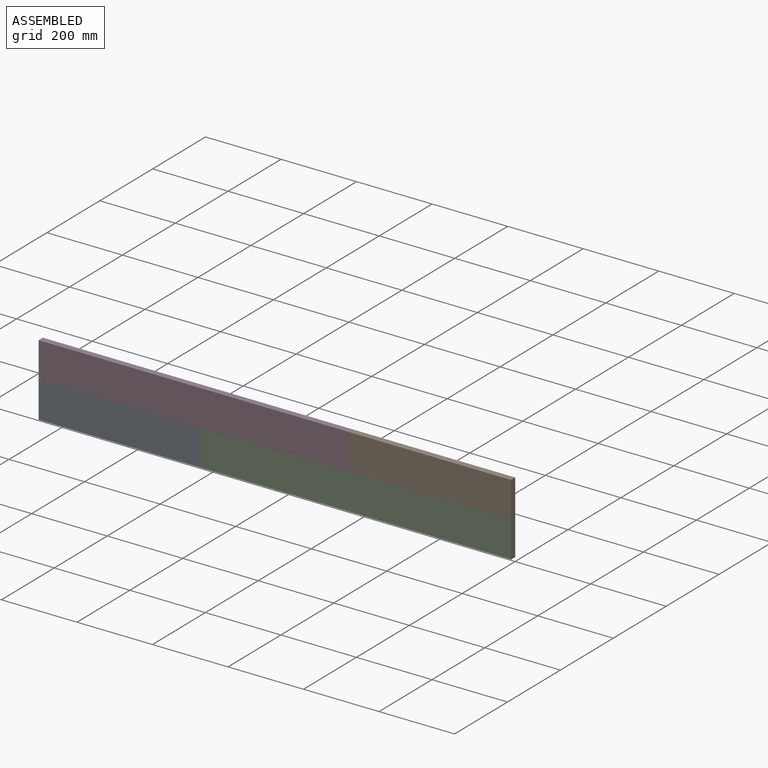
[diagram: assembled view]
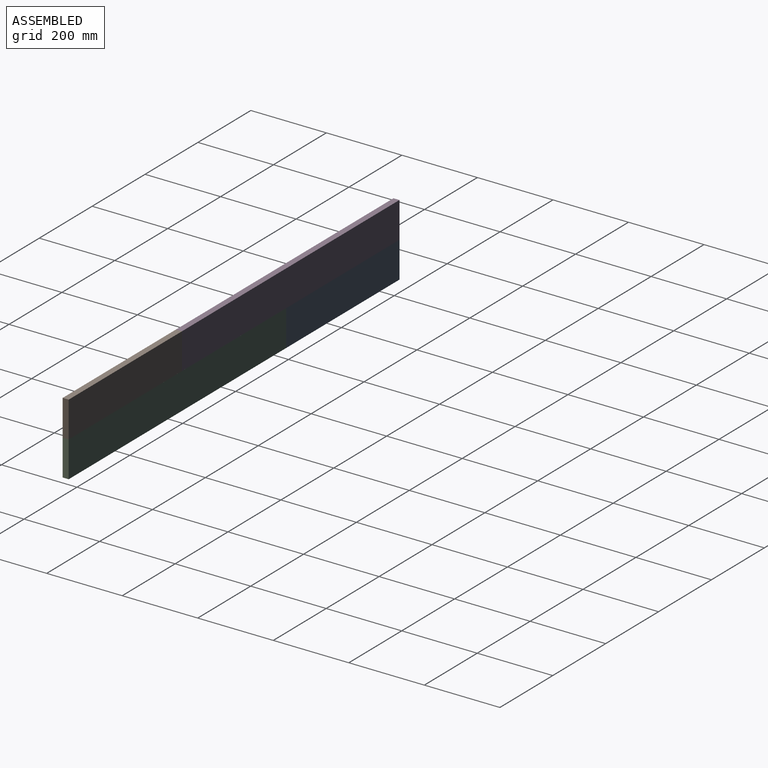
[diagram: assembled view, second angle]
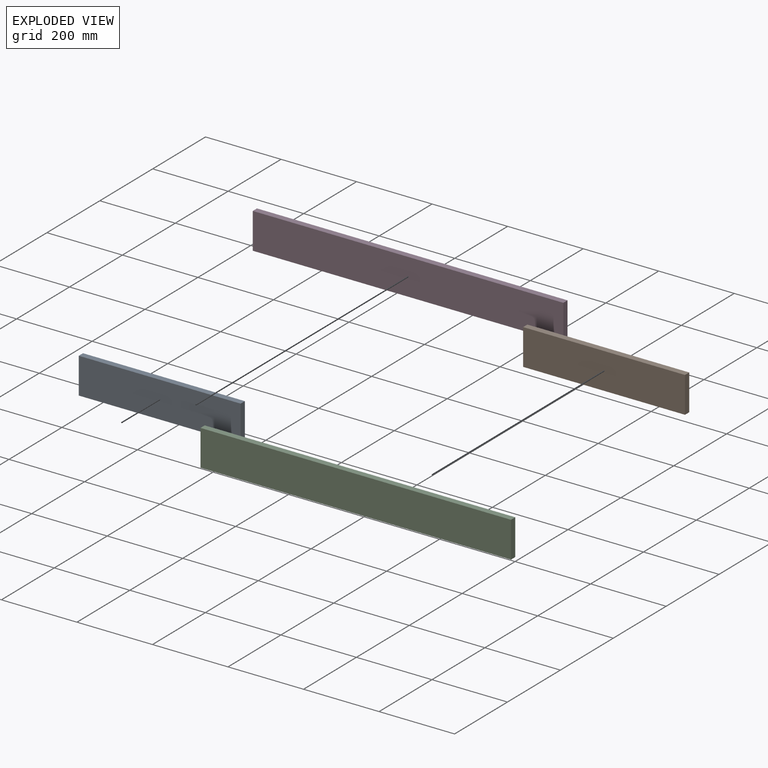
[diagram: exploded view]
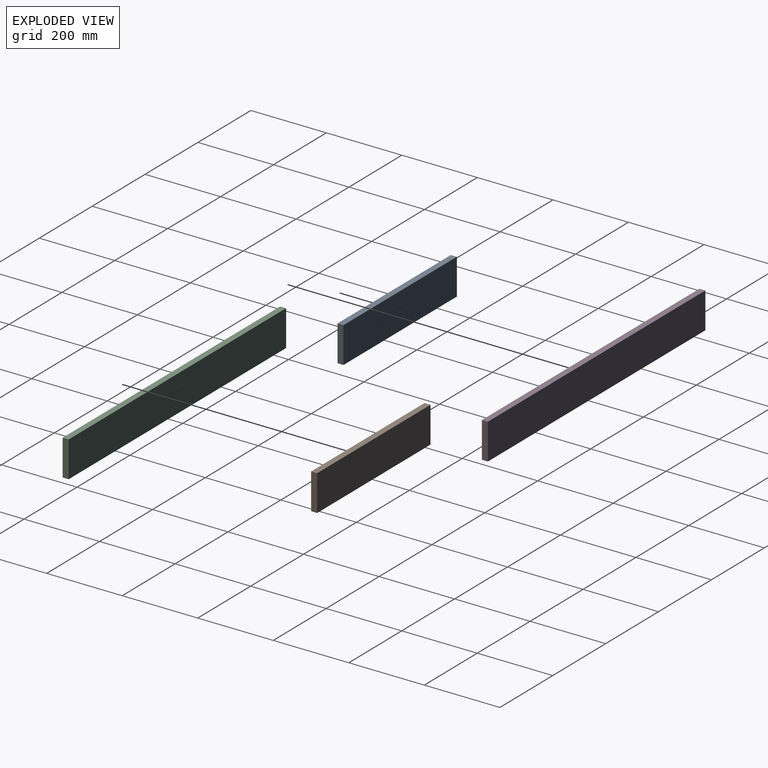
[diagram: exploded view, second angle]
ASSEMBLY  parts=4 mates=3
PART A: 6 faces, bbox 428.6x95.3x15.9 mm
  f0: plane 428.63x15.88mm, normal (0,1,0), area 6804.4mm2, adj f1,f3,f4,f5
  f1: plane 95.25x15.88mm, normal (-1,0,0), area 1512.1mm2, adj f0,f2,f4,f5
  f2: plane 428.63x15.88mm, normal (0,-1,0), area 6804.4mm2, adj f1,f3,f4,f5
  f3: plane 95.25x15.88mm, normal (1,0,0), area 1512.1mm2, adj f0,f2,f4,f5
  f4: plane 428.63x95.25mm, normal (0,0,1), area 40826.5mm2, adj f0,f1,f2,f3
  f5: plane 428.63x95.25mm, normal (0,0,-1), area 40826.5mm2, adj f0,f1,f2,f3
PART B: same geometry as A
PART C: 6 faces, bbox 822.3x95.3x15.9 mm
  f0: plane 822.33x15.88mm, normal (0,1,0), area 13054.4mm2, adj f1,f3,f4,f5
  f1: plane 95.25x15.88mm, normal (-1,0,0), area 1512.1mm2, adj f0,f2,f4,f5
  f2: plane 822.33x15.88mm, normal (0,-1,0), area 13054.4mm2, adj f1,f3,f4,f5
  f3: plane 95.25x15.88mm, normal (1,0,0), area 1512.1mm2, adj f0,f2,f4,f5
  f4: plane 822.33x95.25mm, normal (0,0,1), area 78326.5mm2, adj f0,f1,f2,f3
  f5: plane 822.33x95.25mm, normal (0,0,-1), area 78326.5mm2, adj f0,f1,f2,f3
PART D: same geometry as C
PLACE A rot(axis=(1,0,0),90deg) t=(-234.98,-214.43,326.57)mm
PLACE B rot(axis=(1,0,0),90deg) t=(587.34,-214.43,421.82)mm
PLACE C rot(axis=(1,0,0),90deg) t=(193.64,-214.43,98.68)mm
PLACE D rot(axis=(1,0,0),90deg) t=(-234.98,-214.43,193.93)mm
MATE fastened B.f4 <-> D.f4  axis (0,-1,0) through (181.92,-230.3,-42.15)mm
MATE fastened B.f4 <-> C.f4  axis (0,-1,0) through (610.54,-230.3,-137.4)mm
MATE fastened C.f4 <-> A.f4  axis (0,-1,0) through (-211.78,-230.3,-232.65)mm
